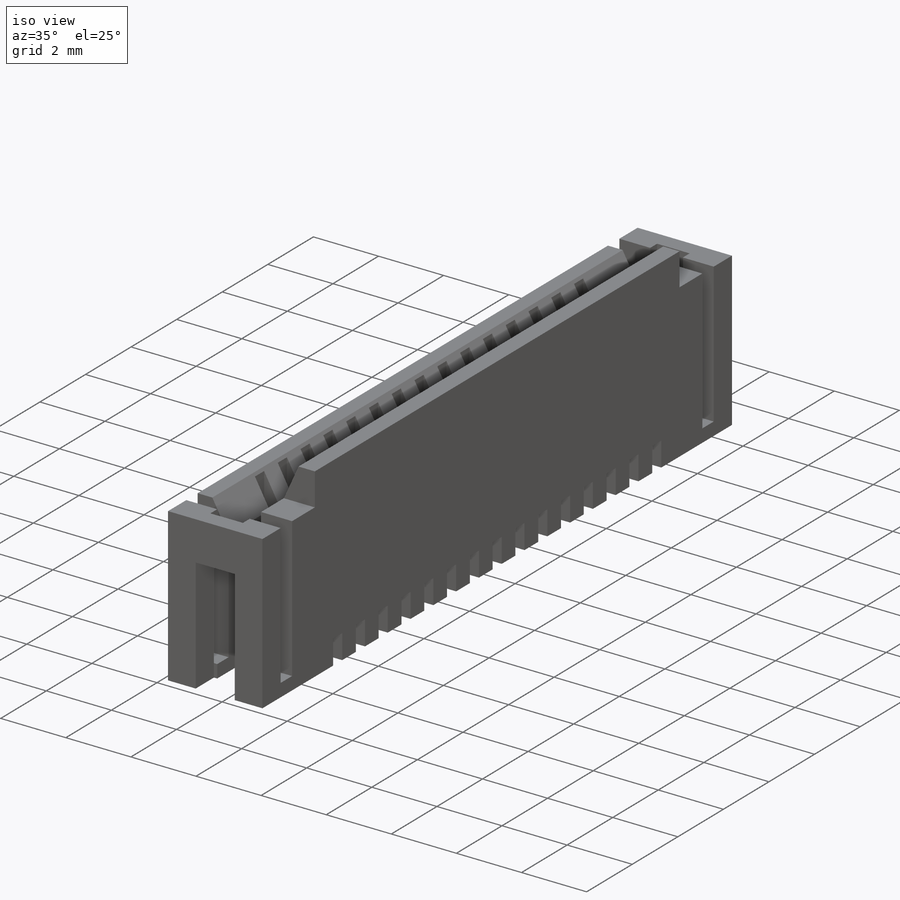
[diagram: iso view]
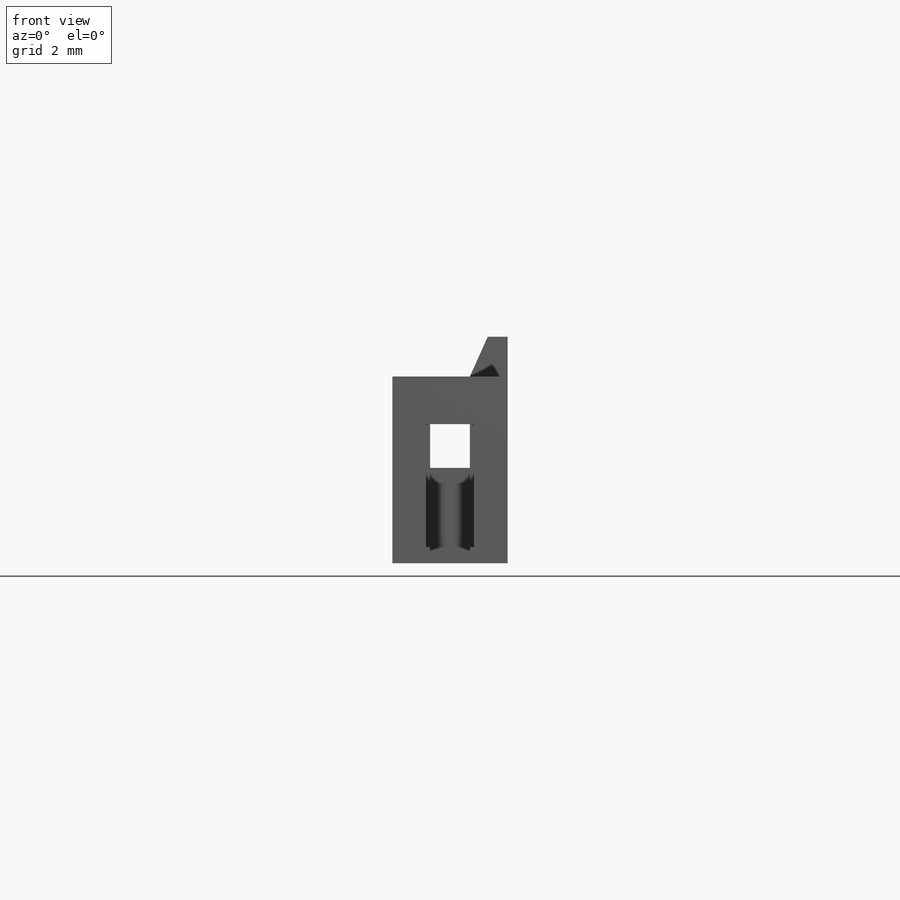
[diagram: front view]
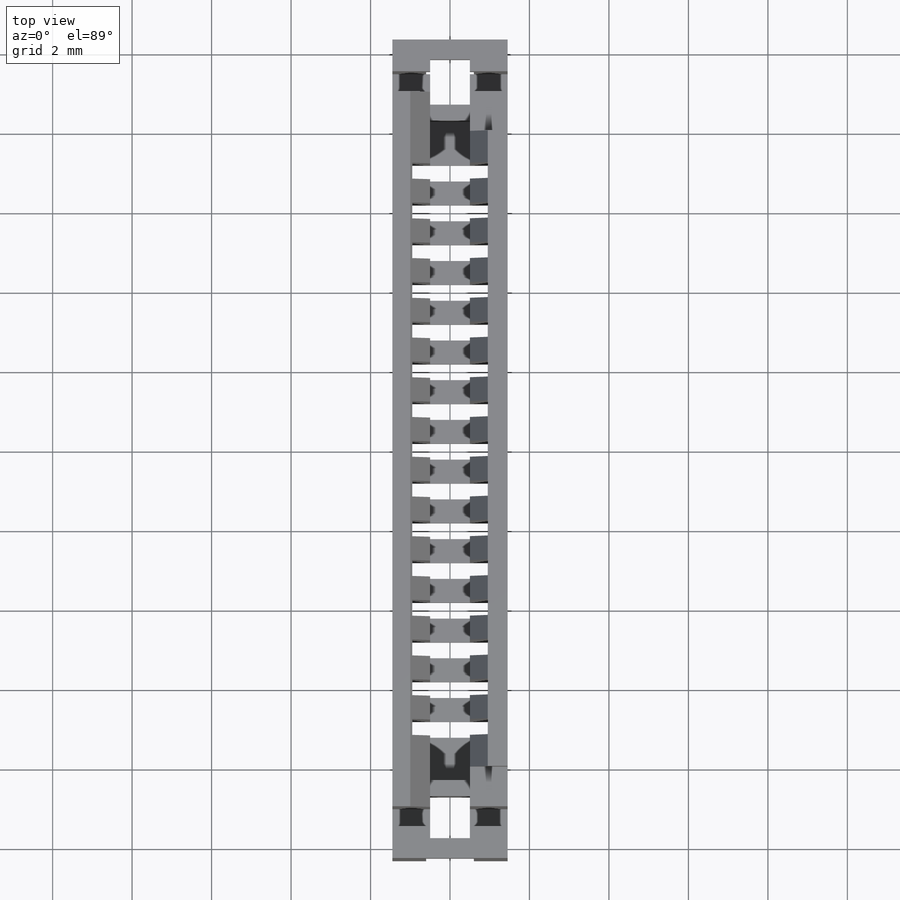
[diagram: top view]
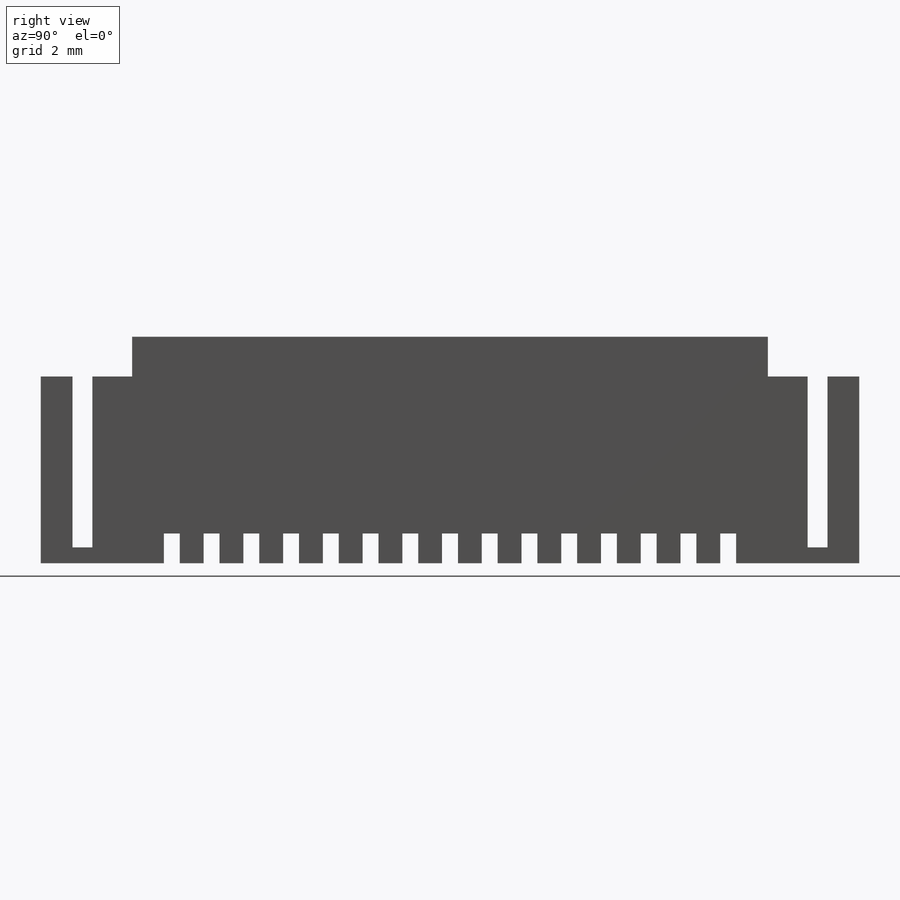
[diagram: right view]
SOLIDWORKS PART (.sldprt)
format: sldprt  version: not decoded by parser v0  size: 464,896 bytes
history: native  units: mm
features: sketch x9, cut_extrude x6, plane x3, extrude x3, material x1, chamfer x1, pattern_linear x1, mirror x1 (+9 scaffold rows collapsed)
feature tree (34):
  scaffold x9  (default folders/planes/origin — collapsed)
  material  "Material <not specified>"
  plane  "Plano frontal"
  plane  "Plano superior"
  plane  "Plano direito"
  sketch  "Esboço1"  dims[D1=20.6mm D2=2.9mm]
  extrude  "Ressalto-extrusão1"  Depth=4.7mm
  sketch  "Esboço2"  dims[D1=19.6mm D2=1.0mm]
  cut_extrude  "Corte-extrusão1"  Depth=4.3mm
  sketch  "Esboço3"  dims[D1=9.0mm D2=9.0mm D3=0.5mm D4=0.5mm]
  cut_extrude  "Corte-extrusão2"  Depth=4.3mm
  chamfer  "Chanfro2"  Distance=0.5mm Angle=61deg
  sketch  "Esboço4"  dims[D1=0.95mm D2=1.0mm D3=0.5mm]
  extrude  "Ressalto-extrusão2"  Depth=16mm
  sketch  "Esboço5"  dims[D1=1.1mm D2=1.1mm]
  cut_extrude  "Corte-extrusão3"  Depth=2mm
  sketch  "Esboço6"  dims[D1=0.4mm D2=0.4mm]
  extrude  "Ressalto-extrusão3"  Depth=2mm
  sketch  "Esboço7"  dims[D1=0.7mm D2=0.4mm D3=0.2mm D4=0.5mm D5=0.5mm D6=0.7mm]
  cut_extrude  "Corte-extrusão4"  Depth=4.3mm
  sketch  "Esboço8"  dims[D1=0.4mm D2=0.0mm D3=1.0mm D4=0.75mm]
  cut_extrude  "Corte-extrusão7"  Depth=12.1mm
  pattern_linear  "Padrão linear1"  Count1=8 Count2=8 Spacing1=1mm Spacing2=1mm
  sketch  "Esboço9"  dims[D1=3.5mm D2=1.2mm D3=0.6mm]
  cut_extrude  "Corte-extrusão6"  Depth=0.8mm
  mirror  "Espelhar1"
decode coverage: 20 of 21 modeling features carry decoded parameters
note: suppression state not decoded; provenance and decode notes live in map.json
